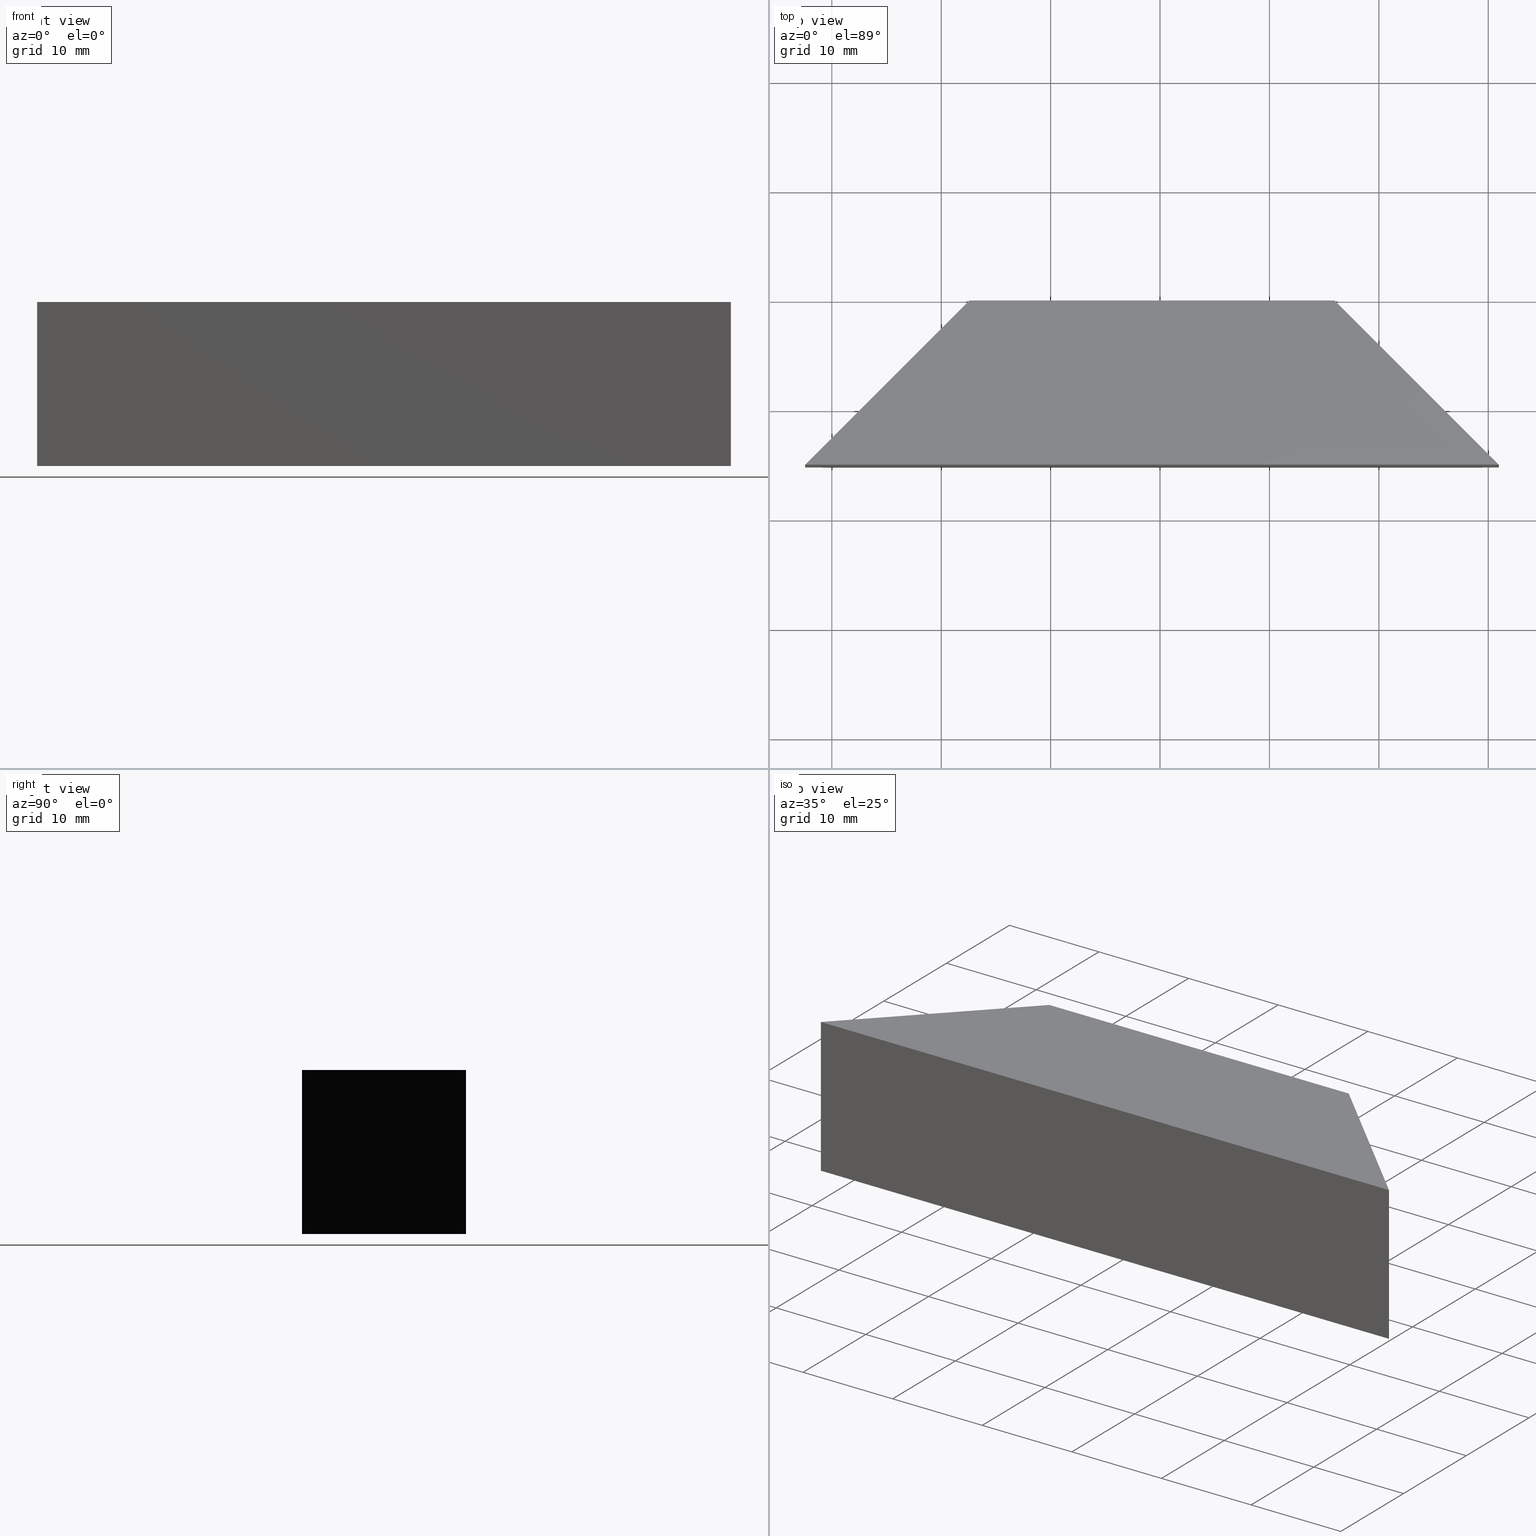
[diagram: canonical four-view strip — front | top / right | iso, engineering-drawing reading convention]
A machine part, canonical four-view strip (front | top / right | iso — engineering-drawing reading convention). The complete STEP part file that produces these views, byte-faithful:
ISO-10303-21;
HEADER;
FILE_DESCRIPTION (( 'STEP AP203' ),
    '1' );
FILE_NAME ('367502.STEP',
    '2019-07-24T06:27:45',
    ( '' ),
    ( '' ),
    'SwSTEP 2.0',
    'SolidWorks 2016',
    '' );
FILE_SCHEMA (( 'CONFIG_CONTROL_DESIGN' ));
ENDSEC;

DATA;
#1 = CC_DESIGN_PERSON_AND_ORGANIZATION_ASSIGNMENT ( #251, #95, ( #132 ) ) ;
#2 = LOCAL_TIME ( 14, 27, 45.00000000000000000, #176 ) ;
#3 = LINE ( 'NONE', #79, #52 ) ;
#4 = PERSON_AND_ORGANIZATION ( #139, #298 ) ;
#5 = CC_DESIGN_APPROVAL ( #231, ( #307 ) ) ;
#6 = PLANE ( 'NONE',  #300 ) ;
#7 = APPROVAL_DATE_TIME ( #76, #231 ) ;
#8 = ORIENTED_EDGE ( 'NONE', *, *, #220, .F. ) ;
#9 = DIRECTION ( 'NONE',  ( 1.000000000000000000, 0.0000000000000000000, 0.0000000000000000000 ) ) ;
#10 = DIRECTION ( 'NONE',  ( 1.000000000000000000, 0.0000000000000000000, -0.0000000000000000000 ) ) ;
#11 = DIRECTION ( 'NONE',  ( 0.0000000000000000000, 0.0000000000000000000, 1.000000000000000000 ) ) ;
#12 = EDGE_CURVE ( 'NONE', #212, #216, #3, .T. ) ;
#13 = ORIENTED_EDGE ( 'NONE', *, *, #273, .F. ) ;
#14 = CARTESIAN_POINT ( 'NONE',  ( 0.0000000000000000000, 0.0000000000000000000, 0.0000000000000000000 ) ) ;
#15 = PERSON_AND_ORGANIZATION_ROLE ( 'classification_officer' ) ;
#16 = APPLICATION_PROTOCOL_DEFINITION ( 'international standard', 'config_control_design', 1994, #213 ) ;
#17 = APPROVAL ( #71, 'δָ��' ) ;
#18 = DATE_AND_TIME ( #53, #203 ) ;
#19 = LINE ( 'NONE', #192, #268 ) ;
#20 = CLOSED_SHELL ( 'NONE', ( #248, #75, #180, #151, #39, #178 ) ) ;
#21 = PRODUCT_DEFINITION_SHAPE ( 'NONE', 'NONE',  #307 ) ;
#22 = CC_DESIGN_APPROVAL ( #17, ( #116 ) ) ;
#23 = AXIS2_PLACEMENT_3D ( 'NONE', #163, #262, #115 ) ;
#24 = DATE_AND_TIME ( #92, #228 ) ;
#25 = EDGE_LOOP ( 'NONE', ( #85, #303, #294, #113 ) ) ;
#26 = PERSON_AND_ORGANIZATION ( #139, #298 ) ;
#27 = EDGE_LOOP ( 'NONE', ( #254, #105, #246, #189 ) ) ;
#28 = DIRECTION ( 'NONE',  ( -0.7071067811865540100, 0.7071067811865410200, 0.0000000000000000000 ) ) ;
#29 = AXIS2_PLACEMENT_3D ( 'NONE', #40, #214, #10 ) ;
#30 = DIRECTION ( 'NONE',  ( 0.0000000000000000000, -0.0000000000000000000, 1.000000000000000000 ) ) ;
#31 = APPROVAL_PERSON_ORGANIZATION ( #101, #181, #309 ) ;
#32 = CC_DESIGN_DATE_AND_TIME_ASSIGNMENT ( #172, #144, ( #169 ) ) ;
#33 = VERTEX_POINT ( 'NONE', #131 ) ;
#34 = EDGE_CURVE ( 'NONE', #162, #102, #93, .T. ) ;
#35 = DIRECTION ( 'NONE',  ( -0.7071067811865474600, -0.7071067811865474600, -0.0000000000000000000 ) ) ;
#36 = PLANE ( 'NONE',  #29 ) ;
#37 = PERSON_AND_ORGANIZATION ( #139, #298 ) ;
#38 = VECTOR ( 'NONE', #9, 1000.000000000000000 ) ;
#39 = ADVANCED_FACE ( 'NONE', ( #80 ), #299, .T. ) ;
#40 = CARTESIAN_POINT ( 'NONE',  ( 0.0000000000000000000, 0.0000000000000000000, 0.0000000000000000000 ) ) ;
#41 = DIRECTION ( 'NONE',  ( 0.0000000000000000000, -0.0000000000000000000, -1.000000000000000000 ) ) ;
#42 = CC_DESIGN_DATE_AND_TIME_ASSIGNMENT ( #18, #174, ( #116 ) ) ;
#43 = DATE_TIME_ROLE ( 'creation_date' ) ;
#44 = APPROVAL_DATE_TIME ( #68, #200 ) ;
#45 = DATE_AND_TIME ( #84, #2 ) ;
#46 = ORIENTED_EDGE ( 'NONE', *, *, #273, .T. ) ;
#47 = PERSON_AND_ORGANIZATION_ROLE ( 'creator' ) ;
#48 = PERSON_AND_ORGANIZATION_ROLE ( 'design_supplier' ) ;
#49 = CC_DESIGN_APPROVAL ( #311, ( #132 ) ) ;
#50 = PERSON_AND_ORGANIZATION ( #139, #298 ) ;
#51 = PERSON_AND_ORGANIZATION_ROLE ( 'design_supplier' ) ;
#52 = VECTOR ( 'NONE', #28, 1000.000000000000100 ) ;
#53 = CALENDAR_DATE ( 2019, 24, 7 ) ;
#54 = CC_DESIGN_DATE_AND_TIME_ASSIGNMENT ( #83, #292, ( #61 ) ) ;
#55 = EDGE_LOOP ( 'NONE', ( #209, #70, #182, #173 ) ) ;
#56 = CC_DESIGN_DATE_AND_TIME_ASSIGNMENT ( #45, #43, ( #307 ) ) ;
#57 = PRODUCT ( '367502', '367502', '', ( #120 ) ) ;
#58 = CARTESIAN_POINT ( 'NONE',  ( 72.56530050263808100, 89.88315572825170800, 15.00000000000000000 ) ) ;
#59 = CARTESIAN_POINT ( 'NONE',  ( 57.56530050263808100, 74.88315572825172200, 15.00000000000000000 ) ) ;
#60 = PERSON_AND_ORGANIZATION ( #139, #298 ) ;
#61 = SECURITY_CLASSIFICATION ( '', '', #221 ) ;
#62 = EDGE_LOOP ( 'NONE', ( #236, #8, #153, #289 ) ) ;
#63 = CARTESIAN_POINT ( 'NONE',  ( 120.9653007026382200, 74.88315572825172200, 15.00000000000000000 ) ) ;
#64 = LOCAL_TIME ( 14, 27, 45.00000000000000000, #128 ) ;
#65 = PLANE ( 'NONE',  #103 ) ;
#66 = APPROVAL_STATUS ( 'not_yet_approved' ) ;
#67 = SECURITY_CLASSIFICATION_LEVEL ( 'unclassified' ) ;
#68 = DATE_AND_TIME ( #297, #146 ) ;
#69 = APPROVAL_DATE_TIME ( #135, #311 ) ;
#70 = ORIENTED_EDGE ( 'NONE', *, *, #244, .F. ) ;
#71 = APPROVAL_STATUS ( 'not_yet_approved' ) ;
#72 = DATE_AND_TIME ( #193, #98 ) ;
#73 = ORIENTED_EDGE ( 'NONE', *, *, #74, .F. ) ;
#74 = EDGE_CURVE ( 'NONE', #216, #162, #239, .T. ) ;
#75 = ADVANCED_FACE ( 'NONE', ( #206 ), #6, .F. ) ;
#76 = DATE_AND_TIME ( #161, #64 ) ;
#77 = EDGE_LOOP ( 'NONE', ( #46, #73, #225, #278 ) ) ;
#78 = LOCAL_TIME ( 14, 27, 45.00000000000000000, #160 ) ;
#79 = CARTESIAN_POINT ( 'NONE',  ( 120.9653007026382200, 74.88315572825172200, 15.00000000000000000 ) ) ;
#80 = FACE_OUTER_BOUND ( 'NONE', #25, .T. ) ;
#81 = DIRECTION ( 'NONE',  ( 0.0000000000000000000, -0.0000000000000000000, 1.000000000000000000 ) ) ;
#82 = DIRECTION ( 'NONE',  ( 0.0000000000000000000, 1.000000000000000000, 0.0000000000000000000 ) ) ;
#83 = DATE_AND_TIME ( #108, #78 ) ;
#84 = CALENDAR_DATE ( 2019, 24, 7 ) ;
#85 = ORIENTED_EDGE ( 'NONE', *, *, #150, .T. ) ;
#86 = PRODUCT_DEFINITION_SHAPE ( 'NONE', 'NONE',  #116 ) ;
#87 = DIRECTION ( 'NONE',  ( 0.0000000000000000000, 0.0000000000000000000, 1.000000000000000000 ) ) ;
#88 = CARTESIAN_POINT ( 'NONE',  ( 72.56530050263808100, 89.88315572825170800, 15.00000000000000000 ) ) ;
#89 = FACE_OUTER_BOUND ( 'NONE', #167, .T. ) ;
#90 = DIRECTION ( 'NONE',  ( 1.000000000000000000, 0.0000000000000000000, 0.0000000000000000000 ) ) ;
#91 = EDGE_CURVE ( 'NONE', #216, #33, #198, .T. ) ;
#92 = CALENDAR_DATE ( 2019, 24, 7 ) ;
#93 = LINE ( 'NONE', #156, #260 ) ;
#94 = APPROVAL_ROLE ( '' ) ;
#95 = PERSON_AND_ORGANIZATION_ROLE ( 'creator' ) ;
#96 = APPROVAL ( #171, 'δָ��' ) ;
#97 = PERSON_AND_ORGANIZATION_ROLE ( 'design_owner' ) ;
#98 = LOCAL_TIME ( 14, 27, 45.00000000000000000, #179 ) ;
#99 = EDGE_CURVE ( 'NONE', #136, #142, #177, .T. ) ;
#100 = APPROVAL_PERSON_ORGANIZATION ( #133, #200, #290 ) ;
#101 = PERSON_AND_ORGANIZATION ( #139, #298 ) ;
#102 = VERTEX_POINT ( 'NONE', #305 ) ;
#103 = AXIS2_PLACEMENT_3D ( 'NONE', #138, #241, #190 ) ;
#104 = COORDINATED_UNIVERSAL_TIME_OFFSET ( 8, 0, .AHEAD. ) ;
#105 = ORIENTED_EDGE ( 'NONE', *, *, #240, .F. ) ;
#106 = CARTESIAN_POINT ( 'NONE',  ( 57.56530050263808100, 74.88315572825172200, 0.0000000000000000000 ) ) ;
#107 = CC_DESIGN_PERSON_AND_ORGANIZATION_ASSIGNMENT ( #37, #51, ( #132 ) ) ;
#108 = CALENDAR_DATE ( 2019, 24, 7 ) ;
#109 = LINE ( 'NONE', #285, #302 ) ;
#110 = PLANE ( 'NONE',  #196 ) ;
#111 = CC_DESIGN_APPROVAL ( #96, ( #252 ) ) ;
#112 = PERSON_AND_ORGANIZATION ( #139, #298 ) ;
#113 = ORIENTED_EDGE ( 'NONE', *, *, #91, .T. ) ;
#114 =( NAMED_UNIT ( * ) SI_UNIT ( $, .STERADIAN. ) SOLID_ANGLE_UNIT ( ) );
#115 = DIRECTION ( 'NONE',  ( 0.7071067811865474600, 0.7071067811865474600, 0.0000000000000000000 ) ) ;
#116 = PRODUCT_DEFINITION ( 'δ֪', '', #252, #205 ) ;
#117 = DIRECTION ( 'NONE',  ( -0.0000000000000000000, -0.0000000000000000000, -1.000000000000000000 ) ) ;
#118 = DIRECTION ( 'NONE',  ( 0.0000000000000000000, -1.000000000000000000, 0.0000000000000000000 ) ) ;
#119 = PERSON_AND_ORGANIZATION ( #139, #298 ) ;
#120 = MECHANICAL_CONTEXT ( 'NONE', #213, 'mechanical' ) ;
#121 = APPLICATION_PROTOCOL_DEFINITION ( 'international standard', 'config_control_design', 1994, #272 ) ;
#122 = VECTOR ( 'NONE', #261, 1000.000000000000100 ) ;
#123 = PERSON_AND_ORGANIZATION_ROLE ( 'classification_officer' ) ;
#124 = ORIENTED_EDGE ( 'NONE', *, *, #34, .F. ) ;
#125 = LOCAL_TIME ( 14, 27, 45.00000000000000000, #315 ) ;
#126 = CC_DESIGN_APPROVAL ( #181, ( #169 ) ) ;
#127 = AXIS2_PLACEMENT_3D ( 'NONE', #219, #87, #306 ) ;
#128 = COORDINATED_UNIVERSAL_TIME_OFFSET ( 8, 0, .AHEAD. ) ;
#129 = CC_DESIGN_PERSON_AND_ORGANIZATION_ASSIGNMENT ( #152, #147, ( #252 ) ) ;
#130 = CC_DESIGN_PERSON_AND_ORGANIZATION_ASSIGNMENT ( #184, #47, ( #116 ) ) ;
#131 = CARTESIAN_POINT ( 'NONE',  ( 72.56530050263808100, 89.88315572825170800, 15.00000000000000000 ) ) ;
#132 = PRODUCT_DEFINITION_FORMATION_WITH_SPECIFIED_SOURCE ( '�κ�', '', #279, .NOT_KNOWN. ) ;
#133 = PERSON_AND_ORGANIZATION ( #139, #298 ) ;
#134 = DIRECTION ( 'NONE',  ( -0.0000000000000000000, -0.0000000000000000000, -1.000000000000000000 ) ) ;
#135 = DATE_AND_TIME ( #312, #308 ) ;
#136 = VERTEX_POINT ( 'NONE', #106 ) ;
#137 =( GEOMETRIC_REPRESENTATION_CONTEXT ( 3 ) GLOBAL_UNCERTAINTY_ASSIGNED_CONTEXT ( ( #207 ) ) GLOBAL_UNIT_ASSIGNED_CONTEXT ( ( #168, #170, #114 ) ) REPRESENTATION_CONTEXT ( 'NONE', 'WORKASPACE' ) );
#138 = CARTESIAN_POINT ( 'NONE',  ( 120.9653007026382200, 74.88315572825172200, 15.00000000000000000 ) ) ;
#139 = PERSON ( 'δָ��', 'δָ��', 'δָ��', ('δָ��'), ('δָ��'), ('δָ��') ) ;
#140 = CARTESIAN_POINT ( 'NONE',  ( 120.9653007026382200, 74.88315572825172200, 0.0000000000000000000 ) ) ;
#141 = APPROVAL_PERSON_ORGANIZATION ( #276, #96, #197 ) ;
#142 = VERTEX_POINT ( 'NONE', #234 ) ;
#143 = CARTESIAN_POINT ( 'NONE',  ( 57.56530050263808100, 74.88315572825172200, 15.00000000000000000 ) ) ;
#144 = DATE_TIME_ROLE ( 'classification_date' ) ;
#145 = CC_DESIGN_SECURITY_CLASSIFICATION ( #61, ( #252 ) ) ;
#146 = LOCAL_TIME ( 14, 27, 45.00000000000000000, #211 ) ;
#147 = PERSON_AND_ORGANIZATION_ROLE ( 'creator' ) ;
#148 = PRODUCT_RELATED_PRODUCT_CATEGORY ( 'detail', '', ( #279 ) ) ;
#149 = ORIENTED_EDGE ( 'NONE', *, *, #99, .F. ) ;
#150 = EDGE_CURVE ( 'NONE', #33, #275, #295, .T. ) ;
#151 = ADVANCED_FACE ( 'NONE', ( #157 ), #110, .F. ) ;
#152 = PERSON_AND_ORGANIZATION ( #139, #298 ) ;
#153 = ORIENTED_EDGE ( 'NONE', *, *, #91, .F. ) ;
#154 = AXIS2_PLACEMENT_3D ( 'NONE', #14, #11, #263 ) ;
#155 = APPROVAL_DATE_TIME ( #72, #96 ) ;
#156 = CARTESIAN_POINT ( 'NONE',  ( 72.56530050263808100, 89.88315572825170800, 0.0000000000000000000 ) ) ;
#157 = FACE_OUTER_BOUND ( 'NONE', #62, .T. ) ;
#158 = DIRECTION ( 'NONE',  ( -0.0000000000000000000, -0.0000000000000000000, -1.000000000000000000 ) ) ;
#159 = DIRECTION ( 'NONE',  ( -1.000000000000000000, -0.0000000000000000000, -0.0000000000000000000 ) ) ;
#160 = COORDINATED_UNIVERSAL_TIME_OFFSET ( 8, 0, .AHEAD. ) ;
#161 = CALENDAR_DATE ( 2019, 24, 7 ) ;
#162 = VERTEX_POINT ( 'NONE', #265 ) ;
#163 = CARTESIAN_POINT ( 'NONE',  ( 57.56530050263808100, 74.88315572825172200, 15.00000000000000000 ) ) ;
#164 = CARTESIAN_POINT ( 'NONE',  ( 72.56530050263808100, 89.88315572825170800, 15.00000000000000000 ) ) ;
#165 = CC_DESIGN_PERSON_AND_ORGANIZATION_ASSIGNMENT ( #264, #123, ( #169 ) ) ;
#166 = COORDINATED_UNIVERSAL_TIME_OFFSET ( 8, 0, .AHEAD. ) ;
#167 = EDGE_LOOP ( 'NONE', ( #277, #124, #13, #149 ) ) ;
#168 =( LENGTH_UNIT ( ) NAMED_UNIT ( * ) SI_UNIT ( .MILLI., .METRE. ) );
#169 = SECURITY_CLASSIFICATION ( '', '', #67 ) ;
#170 =( NAMED_UNIT ( * ) PLANE_ANGLE_UNIT ( ) SI_UNIT ( $, .RADIAN. ) );
#171 = APPROVAL_STATUS ( 'not_yet_approved' ) ;
#172 = DATE_AND_TIME ( #235, #125 ) ;
#173 = ORIENTED_EDGE ( 'NONE', *, *, #240, .T. ) ;
#174 = DATE_TIME_ROLE ( 'creation_date' ) ;
#175 = APPLICATION_CONTEXT ( 'configuration controlled 3d designs of mechanical parts and assemblies' ) ;
#176 = COORDINATED_UNIVERSAL_TIME_OFFSET ( 8, 0, .AHEAD. ) ;
#177 = LINE ( 'NONE', #280, #38 ) ;
#178 = ADVANCED_FACE ( 'NONE', ( #89 ), #36, .F. ) ;
#179 = COORDINATED_UNIVERSAL_TIME_OFFSET ( 8, 0, .AHEAD. ) ;
#180 = ADVANCED_FACE ( 'NONE', ( #293 ), #65, .F. ) ;
#181 = APPROVAL ( #222, 'δָ��' ) ;
#182 = ORIENTED_EDGE ( 'NONE', *, *, #233, .F. ) ;
#183 = CC_DESIGN_PERSON_AND_ORGANIZATION_ASSIGNMENT ( #119, #15, ( #61 ) ) ;
#184 = PERSON_AND_ORGANIZATION ( #139, #298 ) ;
#185 = CARTESIAN_POINT ( 'NONE',  ( 57.56530050263808100, 74.88315572825172200, 15.00000000000000000 ) ) ;
#186 = PERSON_AND_ORGANIZATION ( #139, #298 ) ;
#187 = DIRECTION ( 'NONE',  ( -1.000000000000000000, -0.0000000000000000000, -0.0000000000000000000 ) ) ;
#188 = LINE ( 'NONE', #140, #122 ) ;
#189 = ORIENTED_EDGE ( 'NONE', *, *, #220, .T. ) ;
#190 = DIRECTION ( 'NONE',  ( 0.7071067811865540100, -0.7071067811865410200, 0.0000000000000000000 ) ) ;
#191 = DIRECTION ( 'NONE',  ( -0.7071067811865474600, -0.7071067811865474600, -0.0000000000000000000 ) ) ;
#192 = CARTESIAN_POINT ( 'NONE',  ( 57.56530050263808100, 74.88315572825172200, 15.00000000000000000 ) ) ;
#193 = CALENDAR_DATE ( 2019, 24, 7 ) ;
#194 = APPROVAL_STATUS ( 'not_yet_approved' ) ;
#195 = PERSON_AND_ORGANIZATION_ROLE ( 'creator' ) ;
#196 = AXIS2_PLACEMENT_3D ( 'NONE', #164, #118, #41 ) ;
#197 = APPROVAL_ROLE ( '' ) ;
#198 = LINE ( 'NONE', #58, #283 ) ;
#199 = CC_DESIGN_PERSON_AND_ORGANIZATION_ASSIGNMENT ( #50, #195, ( #307 ) ) ;
#200 = APPROVAL ( #66, 'δָ��' ) ;
#201 = VECTOR ( 'NONE', #134, 1000.000000000000000 ) ;
#202 = CC_DESIGN_SECURITY_CLASSIFICATION ( #169, ( #132 ) ) ;
#203 = LOCAL_TIME ( 14, 27, 45.00000000000000000, #166 ) ;
#204 = APPROVAL_PERSON_ORGANIZATION ( #60, #311, #291 ) ;
#205 = DESIGN_CONTEXT ( 'detailed design', #175, 'design' ) ;
#206 = FACE_OUTER_BOUND ( 'NONE', #55, .T. ) ;
#207 = UNCERTAINTY_MEASURE_WITH_UNIT (LENGTH_MEASURE( 1.000000000000000100E-005 ), #168, 'distance_accuracy_value', 'NONE');
#208 = APPROVAL_PERSON_ORGANIZATION ( #26, #17, #94 ) ;
#209 = ORIENTED_EDGE ( 'NONE', *, *, #99, .T. ) ;
#210 = DESIGN_CONTEXT ( 'detailed design', #269, 'design' ) ;
#211 = COORDINATED_UNIVERSAL_TIME_OFFSET ( 8, 0, .AHEAD. ) ;
#212 = VERTEX_POINT ( 'NONE', #304 ) ;
#213 = APPLICATION_CONTEXT ( 'configuration controlled 3d designs of mechanical parts and assemblies' ) ;
#214 = DIRECTION ( 'NONE',  ( 0.0000000000000000000, -0.0000000000000000000, 1.000000000000000000 ) ) ;
#215 = APPROVAL_DATE_TIME ( #223, #17 ) ;
#216 = VERTEX_POINT ( 'NONE', #237 ) ;
#217 = CARTESIAN_POINT ( 'NONE',  ( 57.56530050263808100, 74.88315572825172200, 15.00000000000000000 ) ) ;
#218 = CC_DESIGN_APPROVAL ( #200, ( #61 ) ) ;
#219 = CARTESIAN_POINT ( 'NONE',  ( 0.0000000000000000000, 0.0000000000000000000, 0.0000000000000000000 ) ) ;
#220 = EDGE_CURVE ( 'NONE', #33, #102, #243, .T. ) ;
#221 = SECURITY_CLASSIFICATION_LEVEL ( 'unclassified' ) ;
#222 = APPROVAL_STATUS ( 'not_yet_approved' ) ;
#223 = DATE_AND_TIME ( #267, #250 ) ;
#224 = FACE_OUTER_BOUND ( 'NONE', #27, .T. ) ;
#225 = ORIENTED_EDGE ( 'NONE', *, *, #12, .F. ) ;
#226 = APPLICATION_PROTOCOL_DEFINITION ( 'international standard', 'config_control_design', 1994, #269 ) ;
#227 = VECTOR ( 'NONE', #191, 1000.000000000000100 ) ;
#228 = LOCAL_TIME ( 14, 27, 45.00000000000000000, #288 ) ;
#229 = VECTOR ( 'NONE', #158, 1000.000000000000000 ) ;
#230 = ADVANCED_BREP_SHAPE_REPRESENTATION ( '367502', ( #271, #127 ), #137 ) ;
#231 = APPROVAL ( #194, 'δָ��' ) ;
#232 = CARTESIAN_POINT ( 'NONE',  ( 0.0000000000000000000, 0.0000000000000000000, 15.00000000000000000 ) ) ;
#233 = EDGE_CURVE ( 'NONE', #275, #212, #19, .T. ) ;
#234 = CARTESIAN_POINT ( 'NONE',  ( 120.9653007026382200, 74.88315572825172200, 0.0000000000000000000 ) ) ;
#235 = CALENDAR_DATE ( 2019, 24, 7 ) ;
#236 = ORIENTED_EDGE ( 'NONE', *, *, #34, .T. ) ;
#237 = CARTESIAN_POINT ( 'NONE',  ( 105.9653007026379500, 89.88315572825170800, 15.00000000000000000 ) ) ;
#238 = VECTOR ( 'NONE', #117, 1000.000000000000000 ) ;
#239 = LINE ( 'NONE', #258, #229 ) ;
#240 = EDGE_CURVE ( 'NONE', #275, #136, #282, .T. ) ;
#241 = DIRECTION ( 'NONE',  ( -0.7071067811865410200, -0.7071067811865540100, 0.0000000000000000000 ) ) ;
#242 = COORDINATED_UNIVERSAL_TIME_OFFSET ( 8, 0, .AHEAD. ) ;
#243 = LINE ( 'NONE', #88, #238 ) ;
#244 = EDGE_CURVE ( 'NONE', #212, #142, #257, .T. ) ;
#245 = VECTOR ( 'NONE', #284, 1000.000000000000000 ) ;
#246 = ORIENTED_EDGE ( 'NONE', *, *, #150, .F. ) ;
#247 = MECHANICAL_CONTEXT ( 'NONE', #272, 'mechanical' ) ;
#248 = ADVANCED_FACE ( 'NONE', ( #224 ), #301, .F. ) ;
#249 = PRODUCT_RELATED_PRODUCT_CATEGORY ( 'detail', '', ( #57 ) ) ;
#250 = LOCAL_TIME ( 14, 27, 45.00000000000000000, #242 ) ;
#251 = PERSON_AND_ORGANIZATION ( #139, #298 ) ;
#252 = PRODUCT_DEFINITION_FORMATION_WITH_SPECIFIED_SOURCE ( '�κ�', '', #57, .NOT_KNOWN. ) ;
#253 = SHAPE_DEFINITION_REPRESENTATION ( #86, #230 ) ;
#254 = ORIENTED_EDGE ( 'NONE', *, *, #255, .T. ) ;
#255 = EDGE_CURVE ( 'NONE', #102, #136, #109, .T. ) ;
#256 = DIRECTION ( 'NONE',  ( 1.000000000000000000, 0.0000000000000000000, -0.0000000000000000000 ) ) ;
#257 = LINE ( 'NONE', #63, #201 ) ;
#258 = CARTESIAN_POINT ( 'NONE',  ( 105.9653007026379500, 89.88315572825170800, 15.00000000000000000 ) ) ;
#259 = APPROVAL_PERSON_ORGANIZATION ( #186, #231, #310 ) ;
#260 = VECTOR ( 'NONE', #187, 1000.000000000000000 ) ;
#261 = DIRECTION ( 'NONE',  ( -0.7071067811865540100, 0.7071067811865410200, 0.0000000000000000000 ) ) ;
#262 = DIRECTION ( 'NONE',  ( 0.7071067811865475700, -0.7071067811865475700, 0.0000000000000000000 ) ) ;
#263 = DIRECTION ( 'NONE',  ( 1.000000000000000000, 0.0000000000000000000, 0.0000000000000000000 ) ) ;
#264 = PERSON_AND_ORGANIZATION ( #139, #298 ) ;
#265 = CARTESIAN_POINT ( 'NONE',  ( 105.9653007026379500, 89.88315572825170800, 0.0000000000000000000 ) ) ;
#266 = CC_DESIGN_PERSON_AND_ORGANIZATION_ASSIGNMENT ( #4, #287, ( #57 ) ) ;
#267 = CALENDAR_DATE ( 2019, 24, 7 ) ;
#268 = VECTOR ( 'NONE', #90, 1000.000000000000000 ) ;
#269 = APPLICATION_CONTEXT ( 'configuration controlled 3d designs of mechanical parts and assemblies' ) ;
#270 = CC_DESIGN_PERSON_AND_ORGANIZATION_ASSIGNMENT ( #314, #48, ( #252 ) ) ;
#271 = MANIFOLD_SOLID_BREP ( '͹̨-����1', #20 ) ;
#272 = APPLICATION_CONTEXT ( 'configuration controlled 3d designs of mechanical parts and assemblies' ) ;
#273 = EDGE_CURVE ( 'NONE', #142, #162, #188, .T. ) ;
#274 = APPROVAL_DATE_TIME ( #24, #181 ) ;
#275 = VERTEX_POINT ( 'NONE', #59 ) ;
#276 = PERSON_AND_ORGANIZATION ( #139, #298 ) ;
#277 = ORIENTED_EDGE ( 'NONE', *, *, #255, .F. ) ;
#278 = ORIENTED_EDGE ( 'NONE', *, *, #244, .T. ) ;
#279 = PRODUCT ( '367502', '367502', '', ( #247 ) ) ;
#280 = CARTESIAN_POINT ( 'NONE',  ( 57.56530050263808100, 74.88315572825172200, 0.0000000000000000000 ) ) ;
#281 = CC_DESIGN_PERSON_AND_ORGANIZATION_ASSIGNMENT ( #112, #97, ( #279 ) ) ;
#282 = LINE ( 'NONE', #217, #245 ) ;
#283 = VECTOR ( 'NONE', #159, 1000.000000000000000 ) ;
#284 = DIRECTION ( 'NONE',  ( -0.0000000000000000000, -0.0000000000000000000, -1.000000000000000000 ) ) ;
#285 = CARTESIAN_POINT ( 'NONE',  ( 57.56530050263808100, 74.88315572825172200, 0.0000000000000000000 ) ) ;
#286 = APPROVAL_STATUS ( 'not_yet_approved' ) ;
#287 = PERSON_AND_ORGANIZATION_ROLE ( 'design_owner' ) ;
#288 = COORDINATED_UNIVERSAL_TIME_OFFSET ( 8, 0, .AHEAD. ) ;
#289 = ORIENTED_EDGE ( 'NONE', *, *, #74, .T. ) ;
#290 = APPROVAL_ROLE ( '' ) ;
#291 = APPROVAL_ROLE ( '' ) ;
#292 = DATE_TIME_ROLE ( 'classification_date' ) ;
#293 = FACE_OUTER_BOUND ( 'NONE', #77, .T. ) ;
#294 = ORIENTED_EDGE ( 'NONE', *, *, #12, .T. ) ;
#295 = LINE ( 'NONE', #143, #227 ) ;
#296 = AXIS2_PLACEMENT_3D ( 'NONE', #232, #81, #256 ) ;
#297 = CALENDAR_DATE ( 2019, 24, 7 ) ;
#298 = ORGANIZATION ( 'δָ��', 'δָ��', '' ) ;
#299 = PLANE ( 'NONE',  #296 ) ;
#300 = AXIS2_PLACEMENT_3D ( 'NONE', #185, #82, #30 ) ;
#301 = PLANE ( 'NONE',  #23 ) ;
#302 = VECTOR ( 'NONE', #35, 1000.000000000000100 ) ;
#303 = ORIENTED_EDGE ( 'NONE', *, *, #233, .T. ) ;
#304 = CARTESIAN_POINT ( 'NONE',  ( 120.9653007026382200, 74.88315572825172200, 15.00000000000000000 ) ) ;
#305 = CARTESIAN_POINT ( 'NONE',  ( 72.56530050263808100, 89.88315572825170800, 0.0000000000000000000 ) ) ;
#306 = DIRECTION ( 'NONE',  ( 1.000000000000000000, 0.0000000000000000000, 0.0000000000000000000 ) ) ;
#307 = PRODUCT_DEFINITION ( 'δ֪', '', #132, #210 ) ;
#308 = LOCAL_TIME ( 14, 27, 45.00000000000000000, #104 ) ;
#309 = APPROVAL_ROLE ( '' ) ;
#310 = APPROVAL_ROLE ( '' ) ;
#311 = APPROVAL ( #286, 'δָ��' ) ;
#312 = CALENDAR_DATE ( 2019, 24, 7 ) ;
#313 = APPLICATION_PROTOCOL_DEFINITION ( 'international standard', 'config_control_design', 1994, #175 ) ;
#314 = PERSON_AND_ORGANIZATION ( #139, #298 ) ;
#315 = COORDINATED_UNIVERSAL_TIME_OFFSET ( 8, 0, .AHEAD. ) ;
ENDSEC;
END-ISO-10303-21;
